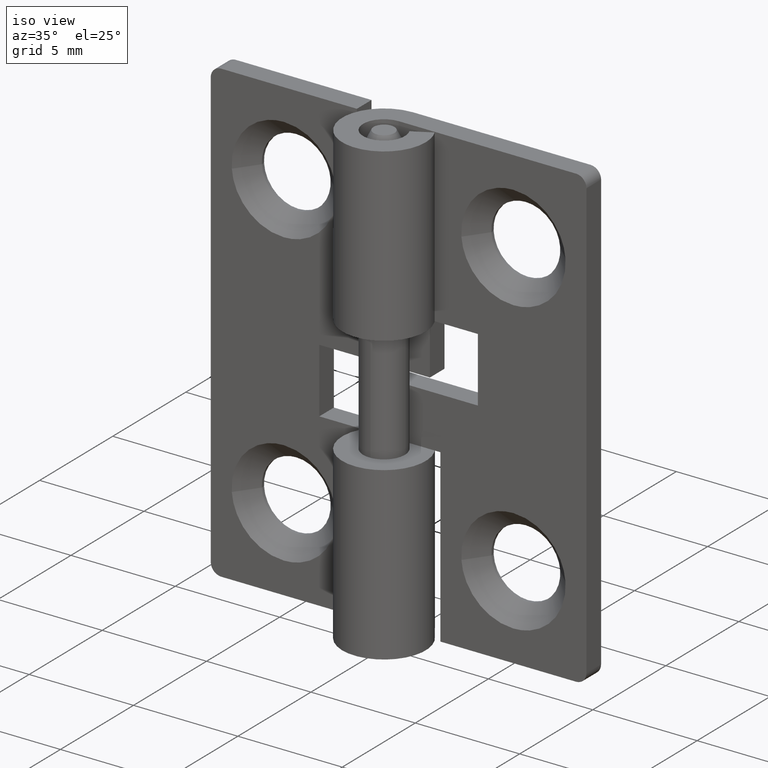
[diagram: clean part render]
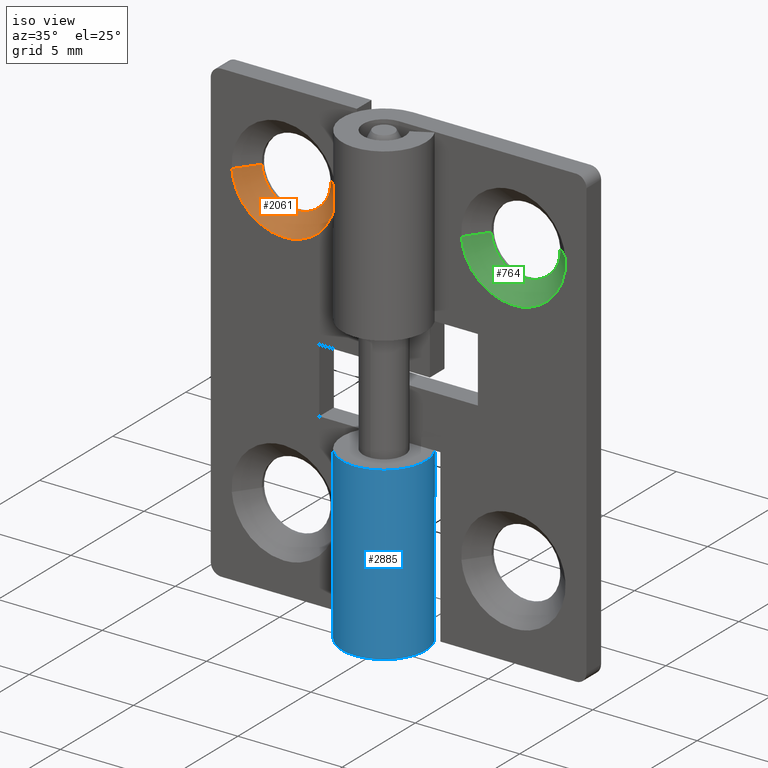
[diagram: same view with three faces highlighted in distinct colors, each labeled with its STEP entity id]
A machine part, iso view with three faces highlighted in distinct colors.
Their STEP definitions:

[orange] entity #2061 — the highlighted face is a freeform B-spline surface patch.
#1752=CARTESIAN_POINT('',(-3.860775830832226,1.850000000000000,17.811733903168349));
#1753=VERTEX_POINT('',#1752);
#1754=CARTESIAN_POINT('',(-5.500000000000000,1.850000000000000,16.350000000000001));
#1755=VERTEX_POINT('',#1754);
#1756=CARTESIAN_POINT('',(-3.860775830832226,1.850000000000000,17.811733903168353));
#1757=CARTESIAN_POINT('',(-4.028657040581952,1.850000000000001,16.349999999999998));
#1758=CARTESIAN_POINT('',(-5.500000000000000,1.850000000000000,16.350000000000001));
#1766=(BOUNDED_CURVE()B_SPLINE_CURVE(2,(#1756,#1757,#1758),.UNSPECIFIED.,.F.,.U.)B_SPLINE_CURVE_WITH_KNOTS((3,3),(0.269767755878685,0.500000000000000),.UNSPECIFIED.)CURVE()GEOMETRIC_REPRESENTATION_ITEM()RATIONAL_B_SPLINE_CURVE((0.957343736456570,0.730266147778653,1.0))REPRESENTATION_ITEM(''));
#1767=EDGE_CURVE('',#1753,#1755,#1766,.T.);
#1806=CARTESIAN_POINT('',(-7.146922417393274,1.850000000000000,17.899269909721589));
#1807=VERTEX_POINT('',#1806);
#1813=CARTESIAN_POINT('',(-5.500000000000000,1.850000000000000,16.350000000000001));
#1814=CARTESIAN_POINT('',(-7.052165010351062,1.850000000000000,16.350000000000001));
#1815=CARTESIAN_POINT('',(-7.146922417393273,1.850000000000000,17.899269909721578));
#1823=(BOUNDED_CURVE()B_SPLINE_CURVE(2,(#1813,#1814,#1815),.UNSPECIFIED.,.F.,.U.)B_SPLINE_CURVE_WITH_KNOTS((3,3),(0.500000000000000,0.739332962237160),.UNSPECIFIED.)CURVE()GEOMETRIC_REPRESENTATION_ITEM()RATIONAL_B_SPLINE_CURVE((1.0,0.719603993288799,0.976072041662896))REPRESENTATION_ITEM(''));
#1824=EDGE_CURVE('',#1755,#1807,#1823,.T.);
#1851=CARTESIAN_POINT('',(-3.855086399333626,1.849999999983171,18.129457508080140));
#1852=VERTEX_POINT('',#1851);
#1853=CARTESIAN_POINT('',(-3.855086399333626,1.849999999983170,18.129457508080140));
#1854=CARTESIAN_POINT('',(-3.850000000000000,1.850000000000000,18.064828676691125));
#1855=CARTESIAN_POINT('',(-3.850000000000000,1.850000000000000,18.0));
#1856=CARTESIAN_POINT('',(-3.850000000000000,1.850000000000000,17.905558562198117));
#1857=CARTESIAN_POINT('',(-3.860775830832226,1.850000000000000,17.811733903168349));
#1865=(BOUNDED_CURVE()B_SPLINE_CURVE(2,(#1853,#1854,#1855,#1856,#1857),.UNSPECIFIED.,.F.,.U.)B_SPLINE_CURVE_WITH_KNOTS((3,2,3),(0.236331300606114,0.250000000000000,0.269767755878685),.UNSPECIFIED.)CURVE()GEOMETRIC_REPRESENTATION_ITEM()RATIONAL_B_SPLINE_CURVE((0.969723356116193,0.983986122550125,1.0,0.976840633407894,0.957343736456570))REPRESENTATION_ITEM(''));
#1866=EDGE_CURVE('',#1852,#1753,#1865,.T.);
#1954=CARTESIAN_POINT('',(-3.007706665666458,0.999999999998199,18.196147739333380));
#1955=VERTEX_POINT('',#1954);
#1956=CARTESIAN_POINT('',(-3.855086399333626,1.849999999983171,18.129457508080140));
#1957=CARTESIAN_POINT('',(-3.007706665666458,0.999999999998199,18.196147739333380));
#1958=QUASI_UNIFORM_CURVE('',1,(#1956,#1957),.UNSPECIFIED.,.F.,.U.);
#1959=EDGE_CURVE('',#1852,#1955,#1958,.T.);
#1976=CARTESIAN_POINT('',(-7.992293334333542,0.999999999998199,17.803852260666620));
#1977=VERTEX_POINT('',#1976);
#1993=CARTESIAN_POINT('',(-7.146922417393274,1.850000000000000,17.899269909721589));
#1994=CARTESIAN_POINT('',(-7.992293334333542,0.999999999998199,17.803852260666620));
#1995=QUASI_UNIFORM_CURVE('',1,(#1993,#1994),.UNSPECIFIED.,.F.,.U.);
#1996=EDGE_CURVE('',#1807,#1977,#1995,.T.);
#2002=CARTESIAN_POINT('',(-7.127725457126627,1.871249999999999,17.922988186701250));
#2003=CARTESIAN_POINT('',(-7.125740308357162,1.871250000000000,17.897764480004639));
#2004=CARTESIAN_POINT('',(-6.995938855151102,1.871250000000000,16.248480640515446));
#2005=CARTESIAN_POINT('',(-5.372209747833272,1.871250000000000,16.376270892682172));
#2006=CARTESIAN_POINT('',(-3.748480640515440,1.871250000000000,16.504061144848897));
#2007=CARTESIAN_POINT('',(-3.877177410734212,1.871249999999999,18.139308656133043));
#2008=CARTESIAN_POINT('',(-3.878078617065198,1.871250000000000,18.150759568284087));
#2009=CARTESIAN_POINT('',(-8.020194958053484,0.978218749999999,17.880763194593833));
#2010=CARTESIAN_POINT('',(-8.017121367296584,0.978218750000000,17.841709521161444));
#2011=CARTESIAN_POINT('',(-7.816150763509758,0.978218750000000,15.288135883493366));
#2012=CARTESIAN_POINT('',(-5.302143323501564,0.978218750000000,15.485992559991811));
#2013=CARTESIAN_POINT('',(-2.788135883493371,0.978218750000000,15.683849236490246));
#2014=CARTESIAN_POINT('',(-2.987396115004198,0.978218749999999,18.215690533844370));
#2015=CARTESIAN_POINT('',(-2.988791445919232,0.978218750000000,18.233419894125504));
#2023=(BOUNDED_SURFACE()B_SPLINE_SURFACE(2,1,((#2002,#2009),(#2003,#2010),(#2004,#2011),(#2005,#2012),(#2006,#2013),(#2007,#2014),(#2008,#2015)),.UNSPECIFIED.,.F.,.F.,.U.)B_SPLINE_SURFACE_WITH_KNOTS((3,1,2,1,3),(2,2),(0.0,0.093606264448563,4.271830244801267,8.450054225153970,8.492094295221698),(0.0,1.0),.UNSPECIFIED.)GEOMETRIC_REPRESENTATION_ITEM()RATIONAL_B_SPLINE_SURFACE(((1.013123585630816,1.013123585630816),(1.006561792815408,1.006561792815408),(0.707106781186548,0.707106781186548),(1.0,1.0),(0.707106781186548,0.707106781186548),(1.002947006072241,1.002947006072241),(1.005894012144481,1.005894012144481)))REPRESENTATION_ITEM('')SURFACE());
#2024=ORIENTED_EDGE('',*,*,#1866,.T.);
#2025=ORIENTED_EDGE('',*,*,#1767,.T.);
#2026=ORIENTED_EDGE('',*,*,#1824,.T.);
#2027=ORIENTED_EDGE('',*,*,#1996,.T.);
#2028=CARTESIAN_POINT('',(-5.500000000000000,1.0,15.500000000000000));
#2029=VERTEX_POINT('',#2028);
#2030=CARTESIAN_POINT('',(-5.500000000000000,1.0,15.500000000000000));
#2031=CARTESIAN_POINT('',(-7.810976229120165,1.0,15.499999999999991));
#2032=CARTESIAN_POINT('',(-7.992293334333542,0.999999999998199,17.803852260666613));
#2040=(BOUNDED_CURVE()B_SPLINE_CURVE(2,(#2030,#2031,#2032),.UNSPECIFIED.,.F.,.U.)B_SPLINE_CURVE_WITH_KNOTS((3,3),(0.500000000000000,0.736331300630892),.UNSPECIFIED.)CURVE()GEOMETRIC_REPRESENTATION_ITEM()RATIONAL_B_SPLINE_CURVE((1.0,0.723120658607393,0.969723356167903))REPRESENTATION_ITEM(''));
#2041=EDGE_CURVE('',#2029,#1977,#2040,.T.);
#2042=ORIENTED_EDGE('',*,*,#2041,.F.);
#2043=CARTESIAN_POINT('',(-3.007706665666457,0.999999999998199,18.196147739333377));
#2044=CARTESIAN_POINT('',(-3.000000000000000,1.0,18.098225267532868));
#2045=CARTESIAN_POINT('',(-3.0,1.0,18.0));
#2046=CARTESIAN_POINT('',(-2.999999999999999,1.0,15.500000000000004));
#2047=CARTESIAN_POINT('',(-5.500000000000000,1.0,15.500000000000000));
#2055=(BOUNDED_CURVE()B_SPLINE_CURVE(2,(#2043,#2044,#2045,#2046,#2047),.UNSPECIFIED.,.F.,.U.)B_SPLINE_CURVE_WITH_KNOTS((3,2,3),(0.236331300630892,0.250000000000000,0.500000000000000),.UNSPECIFIED.)CURVE()GEOMETRIC_REPRESENTATION_ITEM()RATIONAL_B_SPLINE_CURVE((0.969723356167903,0.983986122579155,1.0,0.707106781186548,1.0))REPRESENTATION_ITEM(''));
#2056=EDGE_CURVE('',#1955,#2029,#2055,.T.);
#2057=ORIENTED_EDGE('',*,*,#2056,.F.);
#2058=ORIENTED_EDGE('',*,*,#1959,.F.);
#2059=EDGE_LOOP('',(#2024,#2025,#2026,#2027,#2042,#2057,#2058));
#2060=FACE_OUTER_BOUND('',#2059,.T.);
#2061=ADVANCED_FACE('',(#2060),#2023,.F.);

[blue] entity #2885 — the highlighted face is a freeform B-spline surface patch.
#2637=CARTESIAN_POINT('',(-1.759971590679805,0.950000000000000,8.199997000000000));
#2638=VERTEX_POINT('',#2637);
#2639=CARTESIAN_POINT('',(0.0,2.0,8.199997000000000));
#2640=VERTEX_POINT('',#2639);
#2641=CARTESIAN_POINT('',(-1.759971590679804,0.950000000000000,8.199997000000000));
#2642=CARTESIAN_POINT('',(-2.483544518215584,-0.390492417103144,8.199997000000000));
#2643=CARTESIAN_POINT('',(-1.383518044628769,-1.444256840103792,8.199997000000000));
#2644=CARTESIAN_POINT('',(-0.283491571041955,-2.498021263104437,8.199997000000000));
#2645=CARTESIAN_POINT('',(1.024695076595959,-1.717556403731767,8.199997000000000));
#2646=CARTESIAN_POINT('',(2.332881724233873,-0.937091544359097,8.199997000000000));
#2647=CARTESIAN_POINT('',(1.928096575312494,0.531454227820451,8.199997000000000));
#2648=CARTESIAN_POINT('',(1.523311426391115,2.000000000000000,8.199997000000000));
#2649=CARTESIAN_POINT('',(0.0,2.0,8.199997000000000));
#2657=(BOUNDED_CURVE()B_SPLINE_CURVE(2,(#2641,#2642,#2643,#2644,#2645,#2646,#2647,#2648,#2649),.UNSPECIFIED.,.F.,.U.)B_SPLINE_CURVE_WITH_KNOTS((3,2,2,2,3),(0.0,0.250000000000000,0.500000000000000,0.750000000000000,1.0),.UNSPECIFIED.)CURVE()GEOMETRIC_REPRESENTATION_ITEM()RATIONAL_B_SPLINE_CURVE((1.0,0.795527219493534,1.0,0.795527219493534,1.0,0.795527219493534,1.0,0.795527219493534,1.0))REPRESENTATION_ITEM(''));
#2658=EDGE_CURVE('',#2638,#2640,#2657,.T.);
#2715=CARTESIAN_POINT('',(0.0,2.0,0.0));
#2716=VERTEX_POINT('',#2715);
#2722=CARTESIAN_POINT('',(-1.759971590679805,0.950000000000000,0.0));
#2723=VERTEX_POINT('',#2722);
#2724=CARTESIAN_POINT('',(0.0,2.0,0.0));
#2725=CARTESIAN_POINT('',(1.523311426391113,2.000000000000000,0.0));
#2726=CARTESIAN_POINT('',(1.928096575312494,0.531454227820452,0.0));
#2727=CARTESIAN_POINT('',(2.332881724233873,-0.937091544359094,0.0));
#2728=CARTESIAN_POINT('',(1.024695076595961,-1.717556403731766,0.0));
#2729=CARTESIAN_POINT('',(-0.283491571041951,-2.498021263104438,0.0));
#2730=CARTESIAN_POINT('',(-1.383518044628767,-1.444256840103794,0.0));
#2731=CARTESIAN_POINT('',(-2.483544518215582,-0.390492417103149,0.0));
#2732=CARTESIAN_POINT('',(-1.759971590679806,0.949999999999997,0.0));
#2740=(BOUNDED_CURVE()B_SPLINE_CURVE(2,(#2724,#2725,#2726,#2727,#2728,#2729,#2730,#2731,#2732),.UNSPECIFIED.,.F.,.U.)B_SPLINE_CURVE_WITH_KNOTS((3,2,2,2,3),(0.0,0.250000000000000,0.500000000000000,0.750000000000000,1.0),.UNSPECIFIED.)CURVE()GEOMETRIC_REPRESENTATION_ITEM()RATIONAL_B_SPLINE_CURVE((1.0,0.795527219493534,1.0,0.795527219493534,1.0,0.795527219493534,1.0,0.795527219493534,1.0))REPRESENTATION_ITEM(''));
#2741=EDGE_CURVE('',#2716,#2723,#2740,.T.);
#2845=CARTESIAN_POINT('',(-1.759971590679805,0.950000000000000,8.199997000000000));
#2846=CARTESIAN_POINT('',(-1.759971590679805,0.950000000000000,0.0));
#2847=QUASI_UNIFORM_CURVE('',1,(#2845,#2846),.UNSPECIFIED.,.F.,.U.);
#2848=EDGE_CURVE('',#2638,#2723,#2847,.T.);
#2853=CARTESIAN_POINT('',(-1.723258320883051,1.015076725921408,8.404996925000003));
#2854=CARTESIAN_POINT('',(-1.723258320883051,1.015076725921408,-0.210124923125001));
#2855=CARTESIAN_POINT('',(-2.969344769301742,-1.100358281051034,8.404996925000003));
#2856=CARTESIAN_POINT('',(-2.969344769301742,-1.100358281051034,-0.210124923125001));
#2857=CARTESIAN_POINT('',(-0.645632757753657,-1.892923226682848,8.404996925000003));
#2858=CARTESIAN_POINT('',(-0.645632757753657,-1.892923226682848,-0.210124923125001));
#2859=CARTESIAN_POINT('',(1.678079253794428,-2.685488172314661,8.404996925000003));
#2860=CARTESIAN_POINT('',(1.678079253794428,-2.685488172314661,-0.210124923125001));
#2861=CARTESIAN_POINT('',(1.984374898665018,-0.249512046899941,8.404996925000003));
#2862=CARTESIAN_POINT('',(1.984374898665018,-0.249512046899941,-0.210124923125001));
#2863=CARTESIAN_POINT('',(2.290670543535608,2.186464078514781,8.404996925000003));
#2864=CARTESIAN_POINT('',(2.290670543535608,2.186464078514781,-0.210124923125001));
#2865=CARTESIAN_POINT('',(-0.156918191455691,1.993834667466256,8.404996925000003));
#2866=CARTESIAN_POINT('',(-0.156918191455691,1.993834667466256,-0.210124923125001));
#2874=(BOUNDED_SURFACE()B_SPLINE_SURFACE(1,2,((#2853,#2855,#2857,#2859,#2861,#2863,#2865),(#2854,#2856,#2858,#2860,#2862,#2864,#2866)),.UNSPECIFIED.,.F.,.F.,.U.)B_SPLINE_SURFACE_WITH_KNOTS((2,2),(3,2,2,3),(0.0,8.615121848125003),(0.0,3.801531476131832,7.603062952263665,11.404594428395500),.UNSPECIFIED.)GEOMETRIC_REPRESENTATION_ITEM()RATIONAL_B_SPLINE_SURFACE(((1.0,0.631578351302498,1.0,0.631578351302498,1.0,0.631578351302498,1.0),(1.0,0.631578351302498,1.0,0.631578351302498,1.0,0.631578351302498,1.0)))REPRESENTATION_ITEM('')SURFACE());
#2875=ORIENTED_EDGE('',*,*,#2658,.F.);
#2876=ORIENTED_EDGE('',*,*,#2848,.T.);
#2877=ORIENTED_EDGE('',*,*,#2741,.F.);
#2878=CARTESIAN_POINT('',(0.0,2.0,8.199997000000000));
#2879=CARTESIAN_POINT('',(0.0,2.0,0.0));
#2880=QUASI_UNIFORM_CURVE('',1,(#2878,#2879),.UNSPECIFIED.,.F.,.U.);
#2881=EDGE_CURVE('',#2640,#2716,#2880,.T.);
#2882=ORIENTED_EDGE('',*,*,#2881,.F.);
#2883=EDGE_LOOP('',(#2875,#2876,#2877,#2882));
#2884=FACE_OUTER_BOUND('',#2883,.T.);
#2885=ADVANCED_FACE('',(#2884),#2874,.T.);

[green] entity #764 — the highlighted face is a freeform B-spline surface patch.
#455=CARTESIAN_POINT('',(7.139224169167774,1.850000000000000,17.811733903168349));
#456=VERTEX_POINT('',#455);
#457=CARTESIAN_POINT('',(5.500000000000000,1.850000000000000,16.350000000000001));
#458=VERTEX_POINT('',#457);
#459=CARTESIAN_POINT('',(7.139224169167774,1.850000000000000,17.811733903168353));
#460=CARTESIAN_POINT('',(6.971342959418049,1.850000000000001,16.349999999999998));
#461=CARTESIAN_POINT('',(5.500000000000000,1.850000000000000,16.350000000000001));
#469=(BOUNDED_CURVE()B_SPLINE_CURVE(2,(#459,#460,#461),.UNSPECIFIED.,.F.,.U.)B_SPLINE_CURVE_WITH_KNOTS((3,3),(0.269767755878685,0.500000000000000),.UNSPECIFIED.)CURVE()GEOMETRIC_REPRESENTATION_ITEM()RATIONAL_B_SPLINE_CURVE((0.957343736456570,0.730266147778653,1.0))REPRESENTATION_ITEM(''));
#470=EDGE_CURVE('',#456,#458,#469,.T.);
#509=CARTESIAN_POINT('',(3.853077582606727,1.850000000000000,17.899269909721589));
#510=VERTEX_POINT('',#509);
#516=CARTESIAN_POINT('',(5.500000000000000,1.850000000000000,16.350000000000001));
#517=CARTESIAN_POINT('',(3.947834989648941,1.850000000000000,16.350000000000001));
#518=CARTESIAN_POINT('',(3.853077582606727,1.850000000000000,17.899269909721578));
#526=(BOUNDED_CURVE()B_SPLINE_CURVE(2,(#516,#517,#518),.UNSPECIFIED.,.F.,.U.)B_SPLINE_CURVE_WITH_KNOTS((3,3),(0.500000000000000,0.739332962237160),.UNSPECIFIED.)CURVE()GEOMETRIC_REPRESENTATION_ITEM()RATIONAL_B_SPLINE_CURVE((1.0,0.719603993288799,0.976072041662896))REPRESENTATION_ITEM(''));
#527=EDGE_CURVE('',#458,#510,#526,.T.);
#554=CARTESIAN_POINT('',(7.144913600666376,1.849999999983172,18.129457508080140));
#555=VERTEX_POINT('',#554);
#556=CARTESIAN_POINT('',(7.144913600666376,1.849999999983172,18.129457508080137));
#557=CARTESIAN_POINT('',(7.150000000000001,1.850000000000000,18.064828676691121));
#558=CARTESIAN_POINT('',(7.150000000000000,1.850000000000000,18.0));
#559=CARTESIAN_POINT('',(7.150000000000001,1.850000000000000,17.905558562198120));
#560=CARTESIAN_POINT('',(7.139224169167774,1.850000000000000,17.811733903168353));
#568=(BOUNDED_CURVE()B_SPLINE_CURVE(2,(#556,#557,#558,#559,#560),.UNSPECIFIED.,.F.,.U.)B_SPLINE_CURVE_WITH_KNOTS((3,2,3),(0.236331300606114,0.250000000000000,0.269767755878685),.UNSPECIFIED.)CURVE()GEOMETRIC_REPRESENTATION_ITEM()RATIONAL_B_SPLINE_CURVE((0.969723356116193,0.983986122550125,1.0,0.976840633407894,0.957343736456570))REPRESENTATION_ITEM(''));
#569=EDGE_CURVE('',#555,#456,#568,.T.);
#657=CARTESIAN_POINT('',(7.992293334333542,0.999999999998199,18.196147739333380));
#658=VERTEX_POINT('',#657);
#659=CARTESIAN_POINT('',(7.144913600666376,1.849999999983172,18.129457508080140));
#660=CARTESIAN_POINT('',(7.992293334333542,0.999999999998199,18.196147739333380));
#661=QUASI_UNIFORM_CURVE('',1,(#659,#660),.UNSPECIFIED.,.F.,.U.);
#662=EDGE_CURVE('',#555,#658,#661,.T.);
#679=CARTESIAN_POINT('',(3.007706665666458,0.999999999998199,17.803852260666620));
#680=VERTEX_POINT('',#679);
#696=CARTESIAN_POINT('',(3.853077582606727,1.850000000000000,17.899269909721589));
#697=CARTESIAN_POINT('',(3.007706665666458,0.999999999998199,17.803852260666620));
#698=QUASI_UNIFORM_CURVE('',1,(#696,#697),.UNSPECIFIED.,.F.,.U.);
#699=EDGE_CURVE('',#510,#680,#698,.T.);
#705=CARTESIAN_POINT('',(3.872274542714835,1.871250000000001,17.922988188715543));
#706=CARTESIAN_POINT('',(3.874259691562528,1.871249999999999,17.897764481024947));
#707=CARTESIAN_POINT('',(4.004061144848891,1.871250000000000,16.248480640515432));
#708=CARTESIAN_POINT('',(5.627790252166729,1.871250000000000,16.376270892682161));
#709=CARTESIAN_POINT('',(7.251519359484565,1.871250000000000,16.504061144848897));
#710=CARTESIAN_POINT('',(7.122822589265389,1.871250000000000,18.139308656138169));
#711=CARTESIAN_POINT('',(7.121921382934004,1.871250000000000,18.150759568294252));
#712=CARTESIAN_POINT('',(2.979805041701067,0.978218750000000,17.880763197712550));
#713=CARTESIAN_POINT('',(2.982878632579084,0.978218749999999,17.841709522741191));
#714=CARTESIAN_POINT('',(3.183849236490243,0.978218750000000,15.288135883493366));
#715=CARTESIAN_POINT('',(5.697856676498436,0.978218750000000,15.485992559991811));
#716=CARTESIAN_POINT('',(8.211864116506629,0.978218750000000,15.683849236490246));
#717=CARTESIAN_POINT('',(8.012603884995176,0.978218750000000,18.215690533852296));
#718=CARTESIAN_POINT('',(8.011208554079524,0.978218749999999,18.233419894141246));
#726=(BOUNDED_SURFACE()B_SPLINE_SURFACE(2,1,((#705,#712),(#706,#713),(#707,#714),(#708,#715),(#709,#716),(#710,#717),(#711,#718)),.UNSPECIFIED.,.F.,.F.,.U.)B_SPLINE_SURFACE_WITH_KNOTS((3,1,2,1,3),(2,2),(0.0,0.093606268210475,4.271830248563184,8.450054228915892,8.492094299002343),(0.0,1.0),.UNSPECIFIED.)GEOMETRIC_REPRESENTATION_ITEM()RATIONAL_B_SPLINE_SURFACE(((1.013123586158235,1.013123586158235),(1.006561793079118,1.006561793079118),(0.707106781186548,0.707106781186548),(1.0,1.0),(0.707106781186548,0.707106781186548),(1.002947006073553,1.002947006073553),(1.005894012147106,1.005894012147106)))REPRESENTATION_ITEM('')SURFACE());
#727=ORIENTED_EDGE('',*,*,#569,.T.);
#728=ORIENTED_EDGE('',*,*,#470,.T.);
#729=ORIENTED_EDGE('',*,*,#527,.T.);
#730=ORIENTED_EDGE('',*,*,#699,.T.);
#731=CARTESIAN_POINT('',(5.500000000000000,1.0,15.500000000000000));
#732=VERTEX_POINT('',#731);
#733=CARTESIAN_POINT('',(5.500000000000000,1.0,15.500000000000000));
#734=CARTESIAN_POINT('',(3.189023770879836,1.0,15.499999999999991));
#735=CARTESIAN_POINT('',(3.007706665666458,0.999999999998199,17.803852260666613));
#743=(BOUNDED_CURVE()B_SPLINE_CURVE(2,(#733,#734,#735),.UNSPECIFIED.,.F.,.U.)B_SPLINE_CURVE_WITH_KNOTS((3,3),(0.500000000000000,0.736331300630892),.UNSPECIFIED.)CURVE()GEOMETRIC_REPRESENTATION_ITEM()RATIONAL_B_SPLINE_CURVE((1.0,0.723120658607393,0.969723356167903))REPRESENTATION_ITEM(''));
#744=EDGE_CURVE('',#732,#680,#743,.T.);
#745=ORIENTED_EDGE('',*,*,#744,.F.);
#746=CARTESIAN_POINT('',(7.992293334333542,0.999999999998199,18.196147739333377));
#747=CARTESIAN_POINT('',(8.0,1.0,18.098225267532868));
#748=CARTESIAN_POINT('',(8.0,1.0,18.0));
#749=CARTESIAN_POINT('',(8.0,1.0,15.500000000000004));
#750=CARTESIAN_POINT('',(5.500000000000000,1.0,15.500000000000000));
#758=(BOUNDED_CURVE()B_SPLINE_CURVE(2,(#746,#747,#748,#749,#750),.UNSPECIFIED.,.F.,.U.)B_SPLINE_CURVE_WITH_KNOTS((3,2,3),(0.236331300630892,0.250000000000000,0.500000000000000),.UNSPECIFIED.)CURVE()GEOMETRIC_REPRESENTATION_ITEM()RATIONAL_B_SPLINE_CURVE((0.969723356167903,0.983986122579155,1.0,0.707106781186548,1.0))REPRESENTATION_ITEM(''));
#759=EDGE_CURVE('',#658,#732,#758,.T.);
#760=ORIENTED_EDGE('',*,*,#759,.F.);
#761=ORIENTED_EDGE('',*,*,#662,.F.);
#762=EDGE_LOOP('',(#727,#728,#729,#730,#745,#760,#761));
#763=FACE_OUTER_BOUND('',#762,.T.);
#764=ADVANCED_FACE('',(#763),#726,.F.);